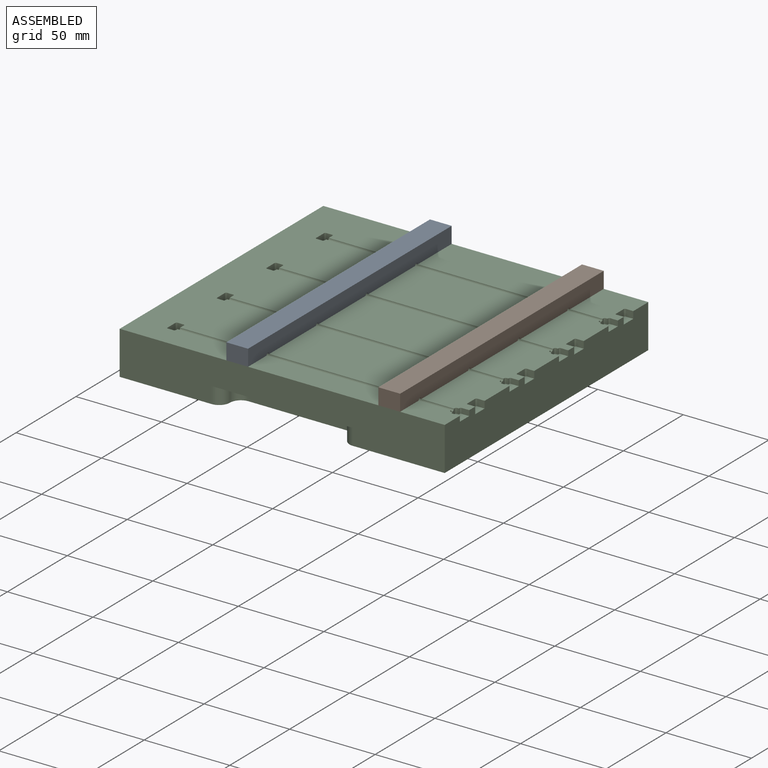
[diagram: assembled view]
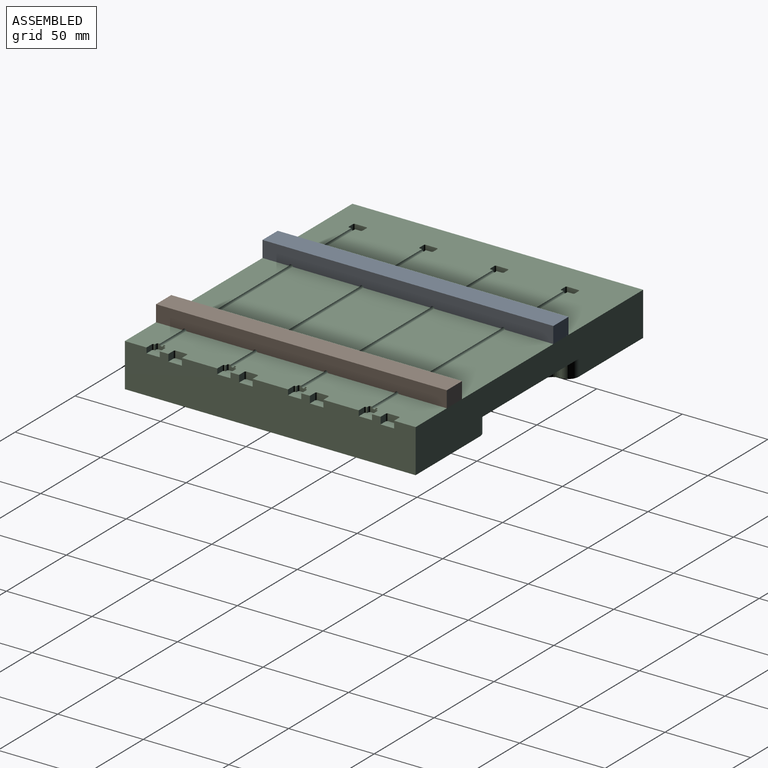
[diagram: assembled view, second angle]
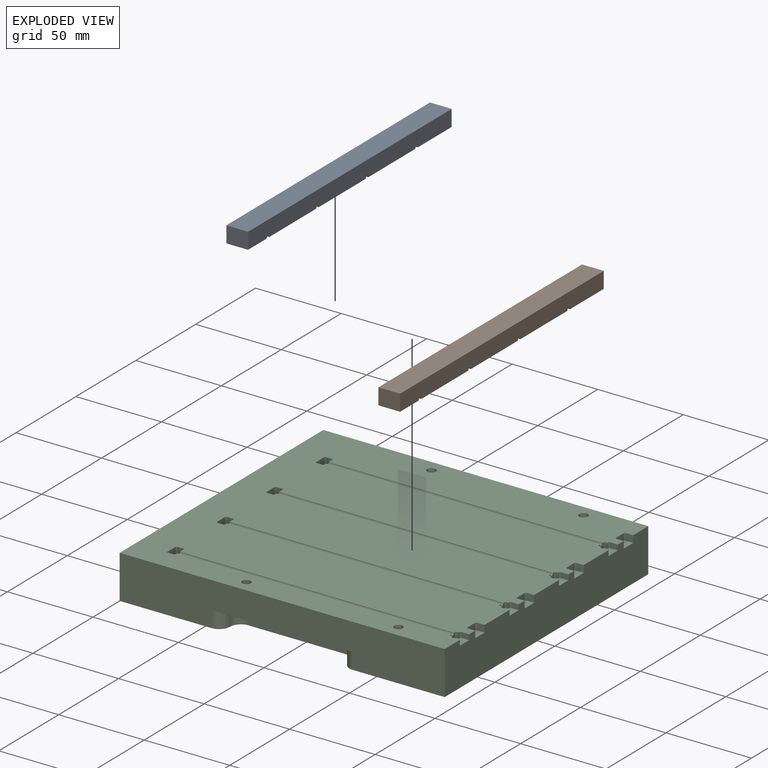
[diagram: exploded view]
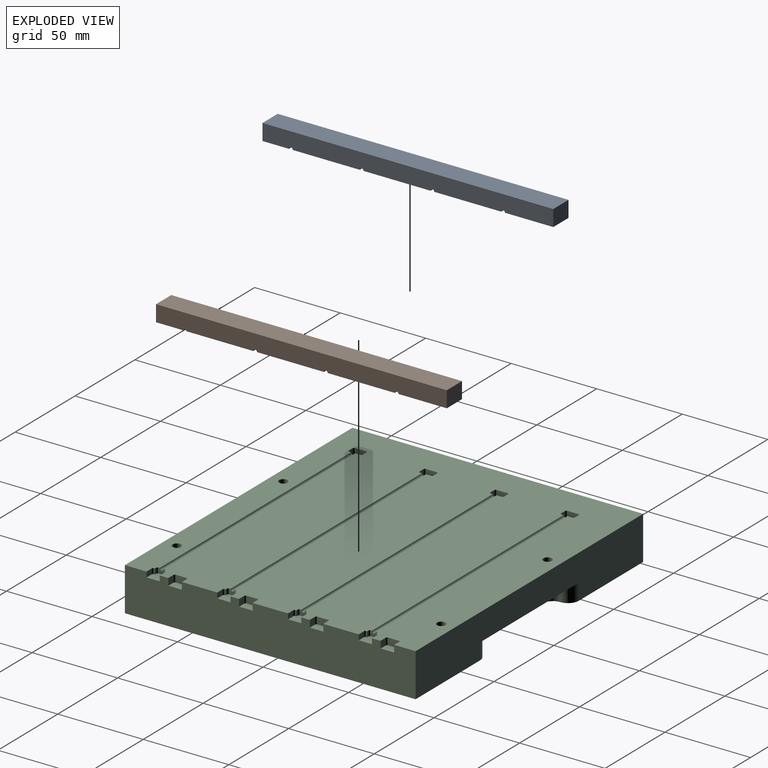
[diagram: exploded view, second angle]
ASSEMBLY  parts=3 mates=2
PART A: 18 faces, bbox 12.7x170x9.5 mm
  f0: plane 15.49x12.7mm, normal (0,0,-1), area 177.1mm2, adj f4,f5,f6,f12,f17
  f1: plane 39.19x12.7mm, normal (0,0,-1), area 497.7mm2, adj f4,f6,f14,f15
  f2: plane 39.19x12.7mm, normal (0,0,-1), area 497.7mm2, adj f4,f6,f15,f16
  f3: plane 39.19x12.7mm, normal (0,0,-1), area 497.7mm2, adj f4,f6,f16,f17
  f4: plane 170x9.53mm, normal (1,0,0), area 1611.8mm2, adj f0,f1,f2,f3,f5,f7,f8,f9
  f5: plane 12.7x9.53mm, normal (0,1,0), area 121mm2, adj f0,f4,f6,f8
  f6: plane 170x9.53mm, normal (-1,0,0), area 1611.8mm2, adj f0,f1,f2,f3,f5,f7,f8,f9
  f7: plane 12.7x9.53mm, normal (0,-1,0), area 121mm2, adj f4,f6,f8,f9
  f8: plane 170x12.7mm, normal (0,0,1), area 2159mm2, adj f4,f5,f6,f7
  f9: plane 28.25x12.7mm, normal (0,0,-1), area 339.2mm2, adj f4,f6,f7,f10,f14
  f10: cylinder r=2.5mm len=6mm, axis (0,0,-1), area 94.2mm2, adj f9,f11
  f11: plane 5x5mm, normal (0,0,-1), area 19.6mm2, adj f10
  f12: cylinder r=2.5mm len=6mm, axis (0,0,-1), area 94.2mm2, adj f0,f13
  f13: plane 5x5mm, normal (0,0,-1), area 19.6mm2, adj f12
  f14: cylinder r=1.09mm len=12.7mm, axis (1,0,0), area 43.3mm2, adj f1,f4,f6,f9
  f15: cylinder r=1.09mm len=12.7mm, axis (1,0,0), area 43.3mm2, adj f1,f2,f4,f6
  f16: cylinder r=1.09mm len=12.7mm, axis (1,0,0), area 43.3mm2, adj f2,f3,f4,f6
  f17: cylinder r=1.09mm len=12.7mm, axis (1,0,0), area 43.3mm2, adj f0,f3,f4,f6
PART B: same geometry as A
PART C: 146 faces, bbox 190x170x25.4 mm
  f0: plane 190x25.4mm, normal (0,1,0), area 4039.7mm2, adj f1,f2,f3,f8,f97,f103,f105
  f1: plane 190x170mm, normal (0,0,-1), area 30412.7mm2, adj f0,f3,f8,f9,f82,f84,f86,f88
  f2: plane 190x170mm, normal (0,0,1), area 30317.7mm2, adj f0,f3,f4,f5,f6,f7,f8,f9
  f3: plane 170x25.4mm, normal (1,0,0), area 4092.6mm2, adj f0,f1,f2,f9,f10,f11,f16,f22
  f4: plane 3.63x3.12mm, normal (1,0,0), area 9.5mm2, adj f2,f32,f93,f128,f131
  f5: plane 3.63x3.12mm, normal (1,0,0), area 9.5mm2, adj f2,f39,f92,f132,f135
  f6: plane 3.63x3.12mm, normal (1,0,0), area 9.5mm2, adj f2,f46,f91,f136,f139
  f7: plane 3.63x3.12mm, normal (1,0,0), area 9.5mm2, adj f2,f16,f90,f143,f144
  f8: plane 170x25.4mm, normal (-1,0,0), area 4318mm2, adj f0,f1,f2,f9
  f9: plane 190x25.4mm, normal (0,-1,0), area 4039.7mm2, adj f1,f2,f3,f8,f95,f99,f100
  f10: plane 4.38x3.12mm, normal (0,1,0), area 13.7mm2, adj f2,f3,f16,f145
  f11: plane 4.38x3.12mm, normal (0,-1,0), area 13.7mm2, adj f2,f3,f16,f142
  f12: plane 3.12x0.48mm, normal (1,0,0), area 1.5mm2, adj f2,f13,f16,f142
  f13: plane 3.12x1.04mm, normal (0,-1,0), area 3.2mm2, adj f2,f12,f16,f143
  f14: plane 3.12x1.04mm, normal (0,1,0), area 3.2mm2, adj f2,f15,f16,f144
  f15: plane 3.12x0.48mm, normal (1,0,0), area 1.5mm2, adj f2,f14,f16,f145
  f16: plane 7.76x7mm, normal (0,0,1), area 49.1mm2, adj f3,f7,f10,f11,f12,f13,f14,f15
  f17: plane 6.46x3.81mm, normal (-1,0,0), area 22.8mm2, adj f2,f21,f90,f118,f121
  f18: plane 3.81x3.38mm, normal (0,-1,0), area 12.9mm2, adj f2,f21,f118,f119
  f19: plane 6.46x3.81mm, normal (1,0,0), area 24.6mm2, adj f2,f21,f119,f120
  f20: plane 3.81x3.38mm, normal (0,1,0), area 12.9mm2, adj f2,f21,f120,f121
  f21: plane 8.05x4.97mm, normal (0,0,1), area 39.4mm2, adj f17,f18,f19,f20,f118,f119,f120,f121
  f22: plane 4.29x4.06mm, normal (0,1,0), area 17.4mm2, adj f2,f3,f25,f141
  f23: plane 4.29x4.06mm, normal (0,-1,0), area 17.4mm2, adj f2,f3,f25,f140
  f24: plane 6.31x4.06mm, normal (1,0,0), area 25.7mm2, adj f2,f25,f140,f141
  f25: plane 7.9x5.08mm, normal (0,0,1), area 39.9mm2, adj f3,f22,f23,f24,f140,f141
  f26: plane 3.12x1.04mm, normal (0,1,0), area 3.2mm2, adj f2,f27,f32,f131
  f27: plane 3.12x0.48mm, normal (1,0,0), area 1.5mm2, adj f2,f26,f32,f130
  f28: plane 4.38x3.12mm, normal (0,1,0), area 13.7mm2, adj f2,f3,f32,f130
  f29: plane 4.38x3.12mm, normal (0,-1,0), area 13.7mm2, adj f2,f3,f32,f129
  f30: plane 3.12x0.48mm, normal (1,0,0), area 1.5mm2, adj f2,f31,f32,f129
  f31: plane 3.12x1.04mm, normal (0,-1,0), area 3.2mm2, adj f2,f30,f32,f128
  f32: plane 7.76x7mm, normal (0,0,1), area 49.1mm2, adj f3,f4,f26,f27,f28,f29,f30,f31
  f33: plane 3.12x1.04mm, normal (0,1,0), area 3.2mm2, adj f2,f34,f39,f132
  f34: plane 3.12x0.48mm, normal (1,0,0), area 1.5mm2, adj f2,f33,f39,f133
  f35: plane 4.38x3.12mm, normal (0,1,0), area 13.7mm2, adj f2,f3,f39,f133
  f36: plane 4.38x3.12mm, normal (0,-1,0), area 13.7mm2, adj f2,f3,f39,f134
  f37: plane 3.12x0.48mm, normal (1,0,0), area 1.5mm2, adj f2,f38,f39,f134
  f38: plane 3.12x1.04mm, normal (0,-1,0), area 3.2mm2, adj f2,f37,f39,f135
  f39: plane 7.76x7mm, normal (0,0,1), area 49.1mm2, adj f3,f5,f33,f34,f35,f36,f37,f38
  f40: plane 3.12x1.04mm, normal (0,1,0), area 3.2mm2, adj f2,f41,f46,f139
  f41: plane 3.12x0.48mm, normal (1,0,0), area 1.5mm2, adj f2,f40,f46,f138
  f42: plane 4.38x3.12mm, normal (0,1,0), area 13.7mm2, adj f2,f3,f46,f138
  f43: plane 4.38x3.12mm, normal (0,-1,0), area 13.7mm2, adj f2,f3,f46,f137
  f44: plane 3.12x0.48mm, normal (1,0,0), area 1.5mm2, adj f2,f45,f46,f137
  f45: plane 3.12x1.04mm, normal (0,-1,0), area 3.2mm2, adj f2,f44,f46,f136
  f46: plane 7.76x7mm, normal (0,0,1), area 49.1mm2, adj f3,f6,f40,f41,f42,f43,f44,f45
  f47: plane 6.46x3.81mm, normal (-1,0,0), area 22.8mm2, adj f2,f51,f93,f106,f109
  f48: plane 3.81x3.38mm, normal (0,-1,0), area 12.9mm2, adj f2,f51,f108,f109
  f49: plane 6.46x3.81mm, normal (1,0,0), area 24.6mm2, adj f2,f51,f107,f108
  f50: plane 3.81x3.38mm, normal (0,1,0), area 12.9mm2, adj f2,f51,f106,f107
  f51: plane 8.05x4.97mm, normal (0,0,1), area 39.4mm2, adj f47,f48,f49,f50,f106,f107,f108,f109
  f52: plane 6.46x3.81mm, normal (-1,0,0), area 22.8mm2, adj f2,f56,f92,f110,f113
  f53: plane 3.81x3.38mm, normal (0,-1,0), area 12.9mm2, adj f2,f56,f110,f111
  f54: plane 6.46x3.81mm, normal (1,0,0), area 24.6mm2, adj f2,f56,f111,f112
  f55: plane 3.81x3.38mm, normal (0,1,0), area 12.9mm2, adj f2,f56,f112,f113
  f56: plane 8.05x4.97mm, normal (0,0,1), area 39.4mm2, adj f52,f53,f54,f55,f110,f111,f112,f113
  f57: plane 6.46x3.81mm, normal (-1,0,0), area 22.8mm2, adj f2,f61,f91,f114,f117
  f58: plane 3.81x3.38mm, normal (0,-1,0), area 12.9mm2, adj f2,f61,f116,f117
  f59: plane 6.46x3.81mm, normal (1,0,0), area 24.6mm2, adj f2,f61,f115,f116
  f60: plane 3.81x3.38mm, normal (0,1,0), area 12.9mm2, adj f2,f61,f114,f115
  f61: plane 8.05x4.97mm, normal (0,0,1), area 39.4mm2, adj f57,f58,f59,f60,f114,f115,f116,f117
  f62: plane 4.29x4.06mm, normal (0,1,0), area 17.4mm2, adj f2,f3,f65,f122
  f63: plane 4.29x4.06mm, normal (0,-1,0), area 17.4mm2, adj f2,f3,f65,f123
  f64: plane 6.31x4.06mm, normal (1,0,0), area 25.7mm2, adj f2,f65,f122,f123
  f65: plane 7.9x5.08mm, normal (0,0,1), area 39.9mm2, adj f3,f62,f63,f64,f122,f123
  f66: plane 4.29x4.06mm, normal (0,1,0), area 17.4mm2, adj f2,f3,f69,f125
  f67: plane 4.29x4.06mm, normal (0,-1,0), area 17.4mm2, adj f2,f3,f69,f124
  f68: plane 6.31x4.06mm, normal (1,0,0), area 25.7mm2, adj f2,f69,f124,f125
  f69: plane 7.9x5.08mm, normal (0,0,1), area 39.9mm2, adj f3,f66,f67,f68,f124,f125
  f70: plane 4.29x4.06mm, normal (0,1,0), area 17.4mm2, adj f2,f3,f73,f126
  f71: plane 4.29x4.06mm, normal (0,-1,0), area 17.4mm2, adj f2,f3,f73,f127
  f72: plane 6.31x4.06mm, normal (1,0,0), area 25.7mm2, adj f2,f73,f126,f127
  f73: plane 7.9x5.08mm, normal (0,0,1), area 39.9mm2, adj f3,f70,f71,f72,f126,f127
  f74: cylinder r=2.5mm len=6mm, axis (0,0,1), area 94.2mm2, adj f2,f75
  f75: plane 5x5mm, normal (0,0,1), area 19.6mm2, adj f74
  f76: cylinder r=2.5mm len=6mm, axis (0,0,1), area 94.2mm2, adj f2,f77
  f77: plane 5x5mm, normal (0,0,1), area 19.6mm2, adj f76
  f78: cylinder r=2.5mm len=6mm, axis (0,0,1), area 94.2mm2, adj f2,f79
  f79: plane 5x5mm, normal (0,0,1), area 19.6mm2, adj f78
  f80: cylinder r=2.5mm len=6mm, axis (0,0,1), area 94.2mm2, adj f2,f81
  f81: plane 5x5mm, normal (0,0,1), area 19.6mm2, adj f80
  f82: cylinder r=3mm len=6mm, axis (0,0,-1), area 113.1mm2, adj f1,f83
  f83: plane 6x6mm, normal (0,0,-1), area 28.3mm2, adj f82
  f84: cylinder r=3mm len=6mm, axis (0,0,-1), area 113.1mm2, adj f1,f85
  f85: plane 6x6mm, normal (0,0,-1), area 28.3mm2, adj f84
  f86: cylinder r=3mm len=6mm, axis (0,0,-1), area 113.1mm2, adj f1,f87
  f87: plane 6x6mm, normal (0,0,-1), area 28.3mm2, adj f86
  f88: cylinder r=3mm len=6mm, axis (0,0,-1), area 113.1mm2, adj f1,f89
  f89: plane 6x6mm, normal (0,0,-1), area 28.3mm2, adj f88
  f90: cylinder r=1.09mm len=160.02mm, axis (1,0,0), area 545.9mm2, adj f2,f7,f17
  f91: cylinder r=1.09mm len=160.02mm, axis (1,0,0), area 545.9mm2, adj f2,f6,f57
  f92: cylinder r=1.09mm len=160.02mm, axis (1,0,0), area 545.9mm2, adj f2,f5,f52
  f93: cylinder r=1.09mm len=160.02mm, axis (1,0,0), area 545.9mm2, adj f2,f4,f47
  f94: plane 57.15x9.53mm, normal (0,-1,0), area 544.4mm2, adj f1,f95,f98,f101
  f95: plane 82.55x12.7mm, normal (0,0,-1), area 887.1mm2, adj f9,f94,f98,f99,f100,f101
  f96: plane 57.15x9.53mm, normal (0,1,0), area 544.4mm2, adj f1,f97,f102,f104
  f97: plane 82.55x12.7mm, normal (0,0,-1), area 887.1mm2, adj f0,f96,f102,f103,f104,f105
  f98: cylinder r=6.35mm len=9.53mm, axis (0,0,1), area 95mm2, adj f1,f94,f95,f99
  f99: cylinder r=6.35mm len=9.53mm, axis (0,0,-1), area 95mm2, adj f1,f9,f95,f98
  f100: cylinder r=6.35mm len=9.53mm, axis (0,0,1), area 95mm2, adj f1,f9,f95,f101
  f101: cylinder r=6.35mm len=9.53mm, axis (0,0,-1), area 95mm2, adj f1,f94,f95,f100
  f102: cylinder r=6.35mm len=9.53mm, axis (0,0,-1), area 95mm2, adj f1,f96,f97,f103
  f103: cylinder r=6.35mm len=9.53mm, axis (0,0,-1), area 95mm2, adj f0,f1,f97,f102
  f104: cylinder r=6.35mm len=9.53mm, axis (0,0,1), area 95mm2, adj f1,f96,f97,f105
  f105: cylinder r=6.35mm len=9.53mm, axis (0,0,1), area 95mm2, adj f0,f1,f97,f104
  f106: cylinder r=0.79mm len=3.81mm, axis (0,0,1), area 4.8mm2, adj f2,f47,f50,f51
  f107: cylinder r=0.79mm len=3.81mm, axis (0,0,-1), area 4.8mm2, adj f2,f49,f50,f51
  f108: cylinder r=0.79mm len=3.81mm, axis (0,0,-1), area 4.8mm2, adj f2,f48,f49,f51
  f109: cylinder r=0.79mm len=3.81mm, axis (0,0,1), area 4.8mm2, adj f2,f47,f48,f51
  f110: cylinder r=0.79mm len=3.81mm, axis (0,0,1), area 4.8mm2, adj f2,f52,f53,f56
  f111: cylinder r=0.79mm len=3.81mm, axis (0,0,-1), area 4.8mm2, adj f2,f53,f54,f56
  f112: cylinder r=0.79mm len=3.81mm, axis (0,0,-1), area 4.8mm2, adj f2,f54,f55,f56
  f113: cylinder r=0.79mm len=3.81mm, axis (0,0,1), area 4.8mm2, adj f2,f52,f55,f56
  f114: cylinder r=0.79mm len=3.81mm, axis (0,0,1), area 4.8mm2, adj f2,f57,f60,f61
  f115: cylinder r=0.79mm len=3.81mm, axis (0,0,-1), area 4.8mm2, adj f2,f59,f60,f61
  f116: cylinder r=0.79mm len=3.81mm, axis (0,0,-1), area 4.8mm2, adj f2,f58,f59,f61
  f117: cylinder r=0.79mm len=3.81mm, axis (0,0,1), area 4.8mm2, adj f2,f57,f58,f61
  f118: cylinder r=0.79mm len=3.81mm, axis (0,0,1), area 4.8mm2, adj f2,f17,f18,f21
  f119: cylinder r=0.79mm len=3.81mm, axis (0,0,-1), area 4.8mm2, adj f2,f18,f19,f21
  f120: cylinder r=0.79mm len=3.81mm, axis (0,0,-1), area 4.8mm2, adj f2,f19,f20,f21
  f121: cylinder r=0.79mm len=3.81mm, axis (0,0,1), area 4.8mm2, adj f2,f17,f20,f21
  f122: cylinder r=0.79mm len=4.06mm, axis (0,0,-1), area 5.1mm2, adj f2,f62,f64,f65
  f123: cylinder r=0.79mm len=4.06mm, axis (0,0,-1), area 5.1mm2, adj f2,f63,f64,f65
  f124: cylinder r=0.79mm len=4.06mm, axis (0,0,-1), area 5.1mm2, adj f2,f67,f68,f69
  f125: cylinder r=0.79mm len=4.06mm, axis (0,0,-1), area 5.1mm2, adj f2,f66,f68,f69
  f126: cylinder r=0.79mm len=4.06mm, axis (0,0,-1), area 5.1mm2, adj f2,f70,f72,f73
  f127: cylinder r=0.79mm len=4.06mm, axis (0,0,-1), area 5.1mm2, adj f2,f71,f72,f73
  f128: cylinder r=0.79mm len=3.12mm, axis (0,0,-1), area 3.9mm2, adj f2,f4,f31,f32
  f129: cylinder r=0.79mm len=3.12mm, axis (0,0,-1), area 3.9mm2, adj f2,f29,f30,f32
  f130: cylinder r=0.79mm len=3.12mm, axis (0,0,1), area 3.9mm2, adj f2,f27,f28,f32
  f131: cylinder r=0.79mm len=3.12mm, axis (0,0,1), area 3.9mm2, adj f2,f4,f26,f32
  f132: cylinder r=0.79mm len=3.12mm, axis (0,0,1), area 3.9mm2, adj f2,f5,f33,f39
  f133: cylinder r=0.79mm len=3.12mm, axis (0,0,1), area 3.9mm2, adj f2,f34,f35,f39
  f134: cylinder r=0.79mm len=3.12mm, axis (0,0,-1), area 3.9mm2, adj f2,f36,f37,f39
  f135: cylinder r=0.79mm len=3.12mm, axis (0,0,-1), area 3.9mm2, adj f2,f5,f38,f39
  f136: cylinder r=0.79mm len=3.12mm, axis (0,0,-1), area 3.9mm2, adj f2,f6,f45,f46
  f137: cylinder r=0.79mm len=3.12mm, axis (0,0,-1), area 3.9mm2, adj f2,f43,f44,f46
  f138: cylinder r=0.79mm len=3.12mm, axis (0,0,1), area 3.9mm2, adj f2,f41,f42,f46
  f139: cylinder r=0.79mm len=3.12mm, axis (0,0,1), area 3.9mm2, adj f2,f6,f40,f46
  f140: cylinder r=0.79mm len=4.06mm, axis (0,0,-1), area 5.1mm2, adj f2,f23,f24,f25
  f141: cylinder r=0.79mm len=4.06mm, axis (0,0,-1), area 5.1mm2, adj f2,f22,f24,f25
  f142: cylinder r=0.79mm len=3.12mm, axis (0,0,-1), area 3.9mm2, adj f2,f11,f12,f16
  f143: cylinder r=0.79mm len=3.12mm, axis (0,0,-1), area 3.9mm2, adj f2,f7,f13,f16
  f144: cylinder r=0.79mm len=3.12mm, axis (0,0,1), area 3.9mm2, adj f2,f7,f14,f16
  f145: cylinder r=0.79mm len=3.12mm, axis (0,0,1), area 3.9mm2, adj f2,f10,f15,f16
PLACE A rot(axis=(0,0,1),180deg) t=(-26.53,0.55,12.7)mm
PLACE B rot(axis=(0,0,1),180deg) t=(62.37,0.55,12.7)mm
PLACE C t=(-5.23,0.55,-12.7)mm
MATE pin_slot A.f10 <-> C.f78  axis (0,0,-1) through (-26.53,77.8,12.7)mm
MATE pin_slot B.f10 <-> C.f76  axis (0,0,-1) through (62.37,77.8,12.7)mm
